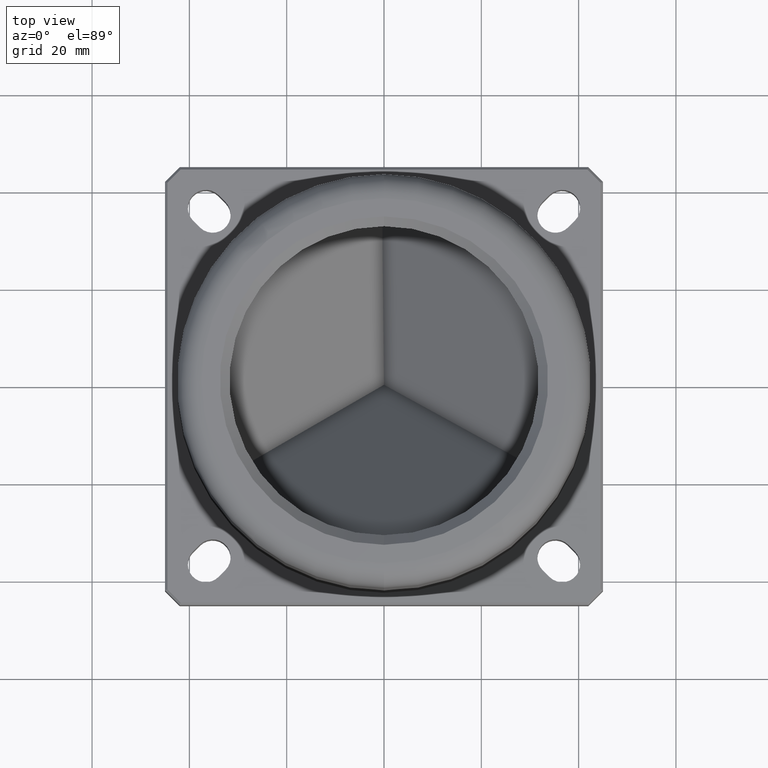
[diagram: clean part render]
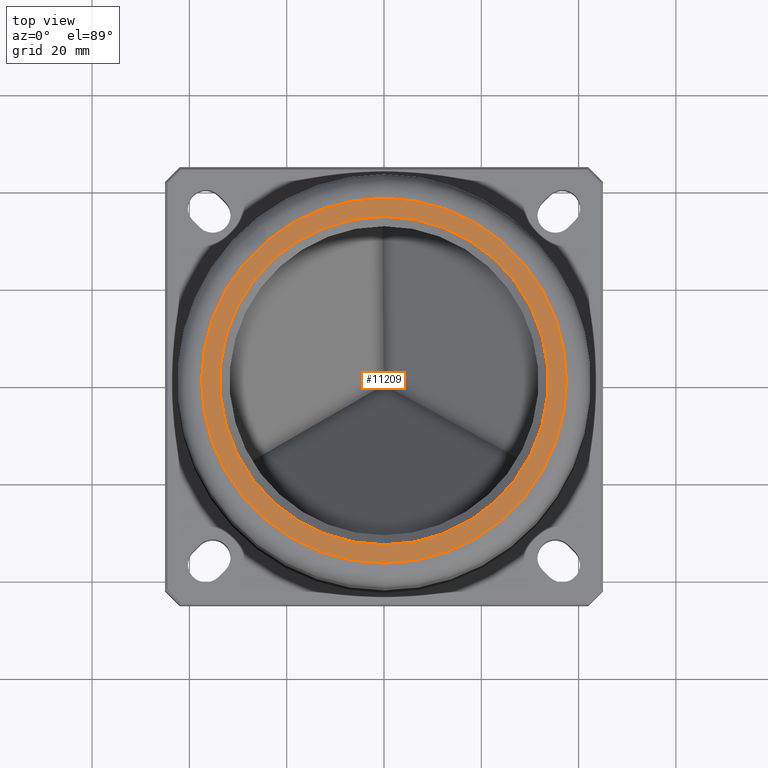
[diagram: same view with one face highlighted and labeled with its STEP entity id]
A machine part, top view. The second image highlights one B-rep face of the part: STEP entity #11209.
In plain terms, the highlighted planar face has unit normal (0, 0, 1).
Its self-contained STEP definition (entity closure, byte-faithful):
#812 = VERTEX_POINT ( 'NONE', #2987 ) ;
#1088 = CARTESIAN_POINT ( 'NONE',  ( -3.370111055693903800E-013, 31.75000000000000000, 80.00000000000000000 ) ) ;
#1483 = DIRECTION ( 'NONE',  ( 8.326672684688669100E-017, 0.0000000000000000000, 1.000000000000000000 ) ) ;
#1606 = EDGE_LOOP ( 'NONE', ( #5938, #2069 ) ) ;
#1615 = CIRCLE ( 'NONE', #6088, 37.50000000000000000 ) ;
#1952 = CARTESIAN_POINT ( 'NONE',  ( -1.227960459690711600E-013, 33.75000000000000000, 80.00000000000000000 ) ) ;
#2015 = DIRECTION ( 'NONE',  ( -3.747002708109905700E-015, 1.000000000000000000, -2.148802014768394500E-017 ) ) ;
#2069 = ORIENTED_EDGE ( 'NONE', *, *, #10399, .T. ) ;
#2658 = AXIS2_PLACEMENT_3D ( 'NONE', #10087, #4656, #10977 ) ;
#2693 = EDGE_CURVE ( 'NONE', #5145, #3367, #6965, .T. ) ;
#2974 = CARTESIAN_POINT ( 'NONE',  ( 1.484386497403277400E-013, -37.50000000000000000, 80.00000000000000000 ) ) ;
#2987 = CARTESIAN_POINT ( 'NONE',  ( -1.368473061244833000E-013, 37.50000000000000000, 80.00000000000000000 ) ) ;
#3046 = CARTESIAN_POINT ( 'NONE',  ( 3.665295429638160400E-015, 2.316515400426250000E-015, 80.00000000000000000 ) ) ;
#3367 = VERTEX_POINT ( 'NONE', #1952 ) ;
#3769 = ORIENTED_EDGE ( 'NONE', *, *, #2693, .T. ) ;
#3961 = DIRECTION ( 'NONE',  ( -3.747002708109905700E-015, 1.000000000000000000, 0.0000000000000000000 ) ) ;
#4178 = EDGE_LOOP ( 'NONE', ( #4629, #3769 ) ) ;
#4383 = EDGE_CURVE ( 'NONE', #812, #9951, #1615, .T. ) ;
#4629 = ORIENTED_EDGE ( 'NONE', *, *, #11152, .T. ) ;
#4656 = DIRECTION ( 'NONE',  ( -8.326672684688669100E-017, -0.0000000000000000000, -1.000000000000000000 ) ) ;
#5089 = DIRECTION ( 'NONE',  ( -3.747002708109905700E-015, 1.000000000000000000, 0.0000000000000000000 ) ) ;
#5127 = FACE_BOUND ( 'NONE', #4178, .T. ) ;
#5145 = VERTEX_POINT ( 'NONE', #7794 ) ;
#5938 = ORIENTED_EDGE ( 'NONE', *, *, #4383, .T. ) ;
#5972 = DIRECTION ( 'NONE',  ( -8.326672684688669100E-017, -0.0000000000000000000, -1.000000000000000000 ) ) ;
#6088 = AXIS2_PLACEMENT_3D ( 'NONE', #6887, #1483, #7804 ) ;
#6815 = CARTESIAN_POINT ( 'NONE',  ( 3.665295429638160400E-015, 2.316515400426250000E-015, 80.00000000000000000 ) ) ;
#6887 = CARTESIAN_POINT ( 'NONE',  ( 3.665295429638160400E-015, 2.316515400426250000E-015, 80.00000000000000000 ) ) ;
#6965 = CIRCLE ( 'NONE', #7334, 33.75000000000000000 ) ;
#7181 = FACE_OUTER_BOUND ( 'NONE', #1606, .T. ) ;
#7334 = AXIS2_PLACEMENT_3D ( 'NONE', #6815, #5972, #5089 ) ;
#7398 = CIRCLE ( 'NONE', #7650, 37.50000000000000000 ) ;
#7421 = DIRECTION ( 'NONE',  ( 8.326672684688660500E-017, 2.148802014768425700E-017, 1.000000000000000000 ) ) ;
#7650 = AXIS2_PLACEMENT_3D ( 'NONE', #3046, #9371, #3961 ) ;
#7794 = CARTESIAN_POINT ( 'NONE',  ( 1.259934538812251600E-013, -33.75000000000000000, 80.00000000000000000 ) ) ;
#7804 = DIRECTION ( 'NONE',  ( -3.747002708109905700E-015, 1.000000000000000000, 0.0000000000000000000 ) ) ;
#9235 = PLANE ( 'NONE',  #11762 ) ;
#9371 = DIRECTION ( 'NONE',  ( 8.326672684688669100E-017, 0.0000000000000000000, 1.000000000000000000 ) ) ;
#9951 = VERTEX_POINT ( 'NONE', #2974 ) ;
#10087 = CARTESIAN_POINT ( 'NONE',  ( 3.665295429638160400E-015, 2.316515400426250000E-015, 80.00000000000000000 ) ) ;
#10399 = EDGE_CURVE ( 'NONE', #9951, #812, #7398, .T. ) ;
#10510 = CIRCLE ( 'NONE', #2658, 33.75000000000000000 ) ;
#10977 = DIRECTION ( 'NONE',  ( -3.747002708109905700E-015, 1.000000000000000000, 0.0000000000000000000 ) ) ;
#11152 = EDGE_CURVE ( 'NONE', #3367, #5145, #10510, .T. ) ;
#11209 = ADVANCED_FACE ( 'NONE', ( #5127, #7181 ), #9235, .T. ) ;
#11762 = AXIS2_PLACEMENT_3D ( 'NONE', #1088, #7421, #2015 ) ;